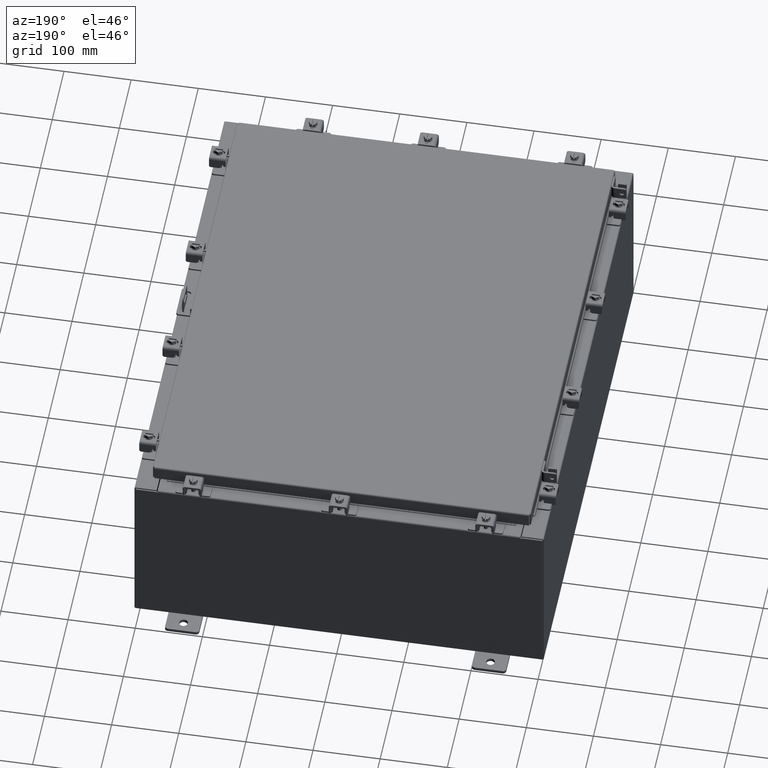
[diagram: clean part render]
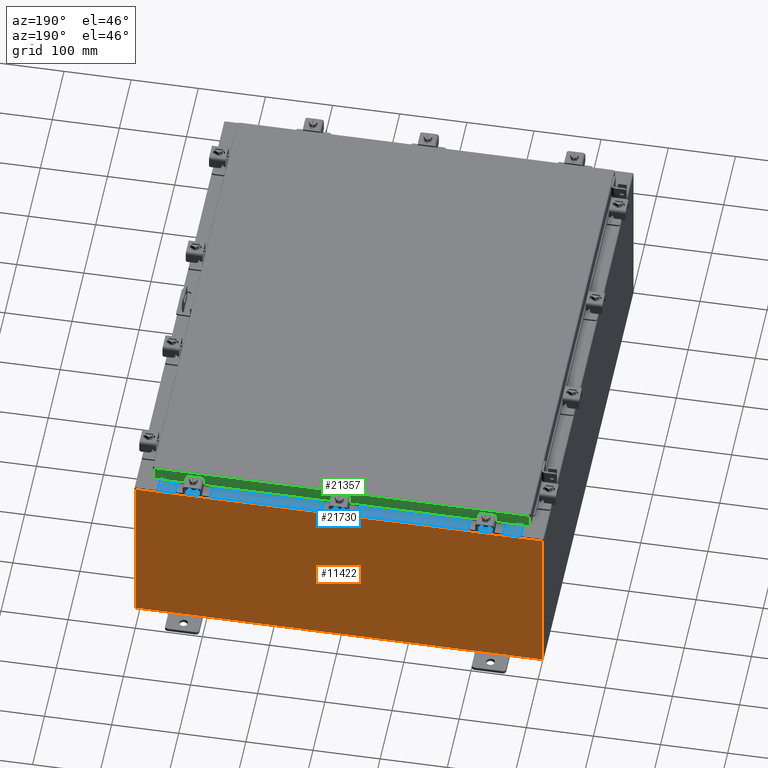
[diagram: same view with three faces highlighted in distinct colors, each labeled with its STEP entity id]
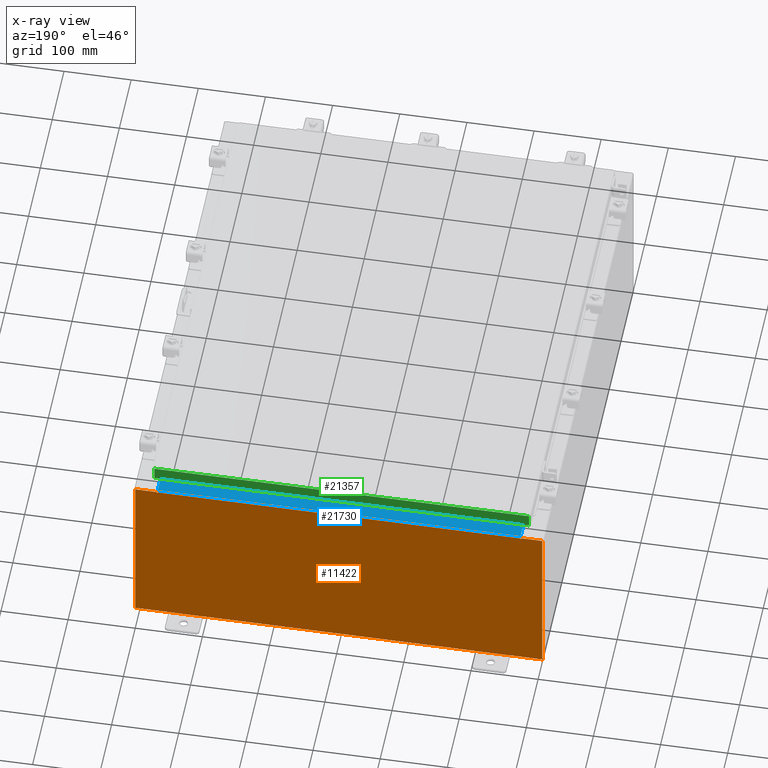
[diagram: x-ray of the same camera — body ghosted, the three highlighted faces saturated]
A machine part, auxiliary view with three faces highlighted in distinct colors.
The next image is the same camera in x-ray (body ghosted, the three faces saturated) — at least one of them is partly hidden behind the body in this view.
Their STEP definitions:

[orange] entity #11422 — the highlighted planar face has unit normal (0, -1, 0).
#81 = CARTESIAN_POINT ( 'NONE',  ( -10.63720000000000400, -7.171100983368691200E-016, 4.912300000000000100 ) ) ;
#388 = VERTEX_POINT ( 'NONE', #21319 ) ;
#489 = ORIENTED_EDGE ( 'NONE', *, *, #22843, .T. ) ;
#549 = ORIENTED_EDGE ( 'NONE', *, *, #1591, .T. ) ;
#699 = CARTESIAN_POINT ( 'NONE',  ( -10.67455000000000200, 0.0000000000000000000, 4.874950000000000100 ) ) ;
#844 = VECTOR ( 'NONE', #14870, 39.37007874015748100 ) ;
#1191 = CARTESIAN_POINT ( 'NONE',  ( 11.92530000000000000, 0.0000000000000000000, -4.925300000000000000 ) ) ;
#1390 = EDGE_CURVE ( 'NONE', #12789, #22672, #20598, .T. ) ;
#1398 = EDGE_CURVE ( 'NONE', #1872, #22672, #11057, .T. ) ;
#1481 = DIRECTION ( 'NONE',  ( 0.0000000000000000000, 0.0000000000000000000, 1.000000000000000000 ) ) ;
#1591 = EDGE_CURVE ( 'NONE', #10877, #388, #21973, .T. ) ;
#1763 = LINE ( 'NONE', #15866, #15434 ) ;
#1872 = VERTEX_POINT ( 'NONE', #699 ) ;
#2328 = ORIENTED_EDGE ( 'NONE', *, *, #6198, .F. ) ;
#2352 = DIRECTION ( 'NONE',  ( 1.000000000000000000, 0.0000000000000000000, 0.0000000000000000000 ) ) ;
#2625 = CARTESIAN_POINT ( 'NONE',  ( -10.67455000000000200, 0.0000000000000000000, 4.925300000000000000 ) ) ;
#2829 = DIRECTION ( 'NONE',  ( 0.0000000000000000000, -0.0000000000000000000, -1.000000000000000000 ) ) ;
#2874 = DIRECTION ( 'NONE',  ( -0.0000000000000000000, 1.000000000000000000, -0.0000000000000000000 ) ) ;
#2935 = VECTOR ( 'NONE', #17983, 39.37007874015748100 ) ;
#3268 = CARTESIAN_POINT ( 'NONE',  ( 10.63720000000000400, 0.0000000000000000000, 0.0000000000000000000 ) ) ;
#3448 = VERTEX_POINT ( 'NONE', #8873 ) ;
#3937 = VERTEX_POINT ( 'NONE', #15804 ) ;
#4365 = CARTESIAN_POINT ( 'NONE',  ( -10.65587500000000200, 0.0000000000000000000, 4.874950000000000100 ) ) ;
#4466 = VECTOR ( 'NONE', #6285, 39.37007874015748100 ) ;
#4902 = CARTESIAN_POINT ( 'NONE',  ( -10.63720000000000400, -7.171100983368691200E-016, 4.912300000000000100 ) ) ;
#5177 = EDGE_CURVE ( 'NONE', #3448, #12789, #1763, .T. ) ;
#5584 = ORIENTED_EDGE ( 'NONE', *, *, #9657, .T. ) ;
#5592 = DIRECTION ( 'NONE',  ( 0.0000000000000000000, 0.0000000000000000000, 1.000000000000000000 ) ) ;
#5613 = EDGE_CURVE ( 'NONE', #5776, #18730, #12906, .T. ) ;
#5776 = VERTEX_POINT ( 'NONE', #15765 ) ;
#6145 = DIRECTION ( 'NONE',  ( 0.0000000000000000000, 0.0000000000000000000, -1.000000000000000000 ) ) ;
#6198 = EDGE_CURVE ( 'NONE', #12036, #1872, #22401, .T. ) ;
#6213 = FACE_OUTER_BOUND ( 'NONE', #13781, .T. ) ;
#6228 = AXIS2_PLACEMENT_3D ( 'NONE', #22462, #13540, #2829 ) ;
#6285 = DIRECTION ( 'NONE',  ( -4.340572780400004900E-014, 0.0000000000000000000, -1.000000000000000000 ) ) ;
#6352 = PLANE ( 'NONE',  #6228 ) ;
#6433 = CARTESIAN_POINT ( 'NONE',  ( -11.92530000000000000, 0.0000000000000000000, -4.925300000000000000 ) ) ;
#7877 = VERTEX_POINT ( 'NONE', #1191 ) ;
#7958 = ORIENTED_EDGE ( 'NONE', *, *, #18064, .F. ) ;
#8047 = ORIENTED_EDGE ( 'NONE', *, *, #10407, .F. ) ;
#8280 = CARTESIAN_POINT ( 'NONE',  ( 11.92530000000000000, 0.0000000000000000000, 4.925300000000000000 ) ) ;
#8347 = CARTESIAN_POINT ( 'NONE',  ( -11.92530000000000000, 0.0000000000000000000, 4.925300000000000000 ) ) ;
#8502 = DIRECTION ( 'NONE',  ( 1.000000000000000000, 0.0000000000000000000, 0.0000000000000000000 ) ) ;
#8565 = CARTESIAN_POINT ( 'NONE',  ( -11.92530000000000000, 0.0000000000000000000, 4.925300000000000000 ) ) ;
#8873 = CARTESIAN_POINT ( 'NONE',  ( -11.92530000000000000, 0.0000000000000000000, -4.925300000000000000 ) ) ;
#9050 = VECTOR ( 'NONE', #2352, 39.37007874015748100 ) ;
#9245 = ORIENTED_EDGE ( 'NONE', *, *, #13829, .F. ) ;
#9331 = LINE ( 'NONE', #3268, #23039 ) ;
#9657 = EDGE_CURVE ( 'NONE', #22860, #7877, #9844, .T. ) ;
#9844 = LINE ( 'NONE', #8280, #19383 ) ;
#10067 = ORIENTED_EDGE ( 'NONE', *, *, #1390, .T. ) ;
#10167 = EDGE_CURVE ( 'NONE', #3937, #22860, #14375, .T. ) ;
#10407 = EDGE_CURVE ( 'NONE', #18730, #388, #9331, .T. ) ;
#10877 = VERTEX_POINT ( 'NONE', #4902 ) ;
#11057 = LINE ( 'NONE', #12782, #16365 ) ;
#11226 = ORIENTED_EDGE ( 'NONE', *, *, #10167, .T. ) ;
#11422 = ADVANCED_FACE ( 'NONE', ( #6213 ), #6352, .F. ) ;
#11703 = VECTOR ( 'NONE', #22550, 39.37007874015748100 ) ;
#12036 = VERTEX_POINT ( 'NONE', #15366 ) ;
#12704 = ORIENTED_EDGE ( 'NONE', *, *, #5613, .F. ) ;
#12782 = CARTESIAN_POINT ( 'NONE',  ( -10.67455000000000200, -0.0000000000000000000, 0.0000000000000000000 ) ) ;
#12789 = VERTEX_POINT ( 'NONE', #8347 ) ;
#12906 = CIRCLE ( 'NONE', #13171, 0.01867499999999949400 ) ;
#13042 = CARTESIAN_POINT ( 'NONE',  ( -11.92530000000000000, 0.0000000000000000000, 4.925300000000000000 ) ) ;
#13171 = AXIS2_PLACEMENT_3D ( 'NONE', #13583, #2874, #15360 ) ;
#13393 = LINE ( 'NONE', #16964, #4466 ) ;
#13540 = DIRECTION ( 'NONE',  ( 0.0000000000000000000, -1.000000000000000000, 0.0000000000000000000 ) ) ;
#13583 = CARTESIAN_POINT ( 'NONE',  ( 10.65587500000000200, 0.0000000000000000000, 4.874950000000000100 ) ) ;
#13781 = EDGE_LOOP ( 'NONE', ( #13969, #2328, #9245, #549, #8047, #12704, #7958, #11226, #5584, #489, #15733, #10067 ) ) ;
#13829 = EDGE_CURVE ( 'NONE', #10877, #12036, #21785, .T. ) ;
#13969 = ORIENTED_EDGE ( 'NONE', *, *, #1398, .F. ) ;
#14375 = LINE ( 'NONE', #13042, #9050 ) ;
#14870 = DIRECTION ( 'NONE',  ( 0.0000000000000000000, 0.0000000000000000000, -1.000000000000000000 ) ) ;
#15360 = DIRECTION ( 'NONE',  ( 0.0000000000000000000, 0.0000000000000000000, -1.000000000000000000 ) ) ;
#15366 = CARTESIAN_POINT ( 'NONE',  ( -10.63720000000000400, -0.0000000000000000000, 4.874950000000000100 ) ) ;
#15434 = VECTOR ( 'NONE', #23072, 39.37007874015748100 ) ;
#15733 = ORIENTED_EDGE ( 'NONE', *, *, #5177, .T. ) ;
#15765 = CARTESIAN_POINT ( 'NONE',  ( 10.67455000000000200, 0.0000000000000000000, 4.874950000000000100 ) ) ;
#15804 = CARTESIAN_POINT ( 'NONE',  ( 10.67455000000000200, 0.0000000000000000000, 4.925300000000000000 ) ) ;
#15810 = VECTOR ( 'NONE', #8502, 39.37007874015748100 ) ;
#15866 = CARTESIAN_POINT ( 'NONE',  ( -11.92530000000000000, 0.0000000000000000000, 4.925300000000000000 ) ) ;
#16365 = VECTOR ( 'NONE', #5592, 39.37007874015748100 ) ;
#16431 = LINE ( 'NONE', #6433, #11703 ) ;
#16838 = DIRECTION ( 'NONE',  ( -0.0000000000000000000, 1.000000000000000000, -0.0000000000000000000 ) ) ;
#16964 = CARTESIAN_POINT ( 'NONE',  ( 10.67454999999979000, -0.0000000000000000000, -4.633366117301795800E-013 ) ) ;
#17054 = AXIS2_PLACEMENT_3D ( 'NONE', #4365, #16838, #6145 ) ;
#17983 = DIRECTION ( 'NONE',  ( 1.000000000000000000, 0.0000000000000000000, 0.0000000000000000000 ) ) ;
#18064 = EDGE_CURVE ( 'NONE', #3937, #5776, #13393, .T. ) ;
#18730 = VERTEX_POINT ( 'NONE', #20807 ) ;
#19122 = CARTESIAN_POINT ( 'NONE',  ( 11.92530000000000000, 0.0000000000000000000, 4.925300000000000000 ) ) ;
#19383 = VECTOR ( 'NONE', #20823, 39.37007874015748100 ) ;
#20598 = LINE ( 'NONE', #8565, #15810 ) ;
#20807 = CARTESIAN_POINT ( 'NONE',  ( 10.63720000000000400, 0.0000000000000000000, 4.874950000000000100 ) ) ;
#20823 = DIRECTION ( 'NONE',  ( 0.0000000000000000000, 0.0000000000000000000, -1.000000000000000000 ) ) ;
#21319 = CARTESIAN_POINT ( 'NONE',  ( 10.63720000000000400, 0.0000000000000000000, 4.912300000000000100 ) ) ;
#21785 = LINE ( 'NONE', #22002, #844 ) ;
#21973 = LINE ( 'NONE', #81, #2935 ) ;
#22002 = CARTESIAN_POINT ( 'NONE',  ( -10.63720000000000400, -0.0000000000000000000, 0.0000000000000000000 ) ) ;
#22401 = CIRCLE ( 'NONE', #17054, 0.01867499999999949400 ) ;
#22462 = CARTESIAN_POINT ( 'NONE',  ( 0.0000000000000000000, 0.0000000000000000000, 0.0000000000000000000 ) ) ;
#22550 = DIRECTION ( 'NONE',  ( -1.000000000000000000, -0.0000000000000000000, -0.0000000000000000000 ) ) ;
#22672 = VERTEX_POINT ( 'NONE', #2625 ) ;
#22843 = EDGE_CURVE ( 'NONE', #7877, #3448, #16431, .T. ) ;
#22860 = VERTEX_POINT ( 'NONE', #19122 ) ;
#23039 = VECTOR ( 'NONE', #1481, 39.37007874015748100 ) ;
#23072 = DIRECTION ( 'NONE',  ( -0.0000000000000000000, -0.0000000000000000000, 1.000000000000000000 ) ) ;

[blue] entity #21730 — the highlighted planar face has unit normal (0, 0, 1).
#502 = ORIENTED_EDGE ( 'NONE', *, *, #3005, .F. ) ;
#2322 = LINE ( 'NONE', #10391, #20787 ) ;
#2601 = CARTESIAN_POINT ( 'NONE',  ( -10.63720000000000200, -0.08770000000000081900, 5.000000000000000000 ) ) ;
#2613 = CARTESIAN_POINT ( 'NONE',  ( 0.0000000000000000000, 1.782631094477737600E-014, 5.000000000000000000 ) ) ;
#3005 = EDGE_CURVE ( 'NONE', #22979, #18825, #20876, .T. ) ;
#3113 = VECTOR ( 'NONE', #9122, 39.37007874015748100 ) ;
#3401 = VERTEX_POINT ( 'NONE', #8815 ) ;
#3723 = ORIENTED_EDGE ( 'NONE', *, *, #21160, .T. ) ;
#5095 = DIRECTION ( 'NONE',  ( -0.0000000000000000000, 1.000000000000000000, -3.566381192773190000E-015 ) ) ;
#5127 = EDGE_CURVE ( 'NONE', #18825, #12606, #2322, .T. ) ;
#6029 = CARTESIAN_POINT ( 'NONE',  ( 10.63720000000000400, -1.287299999999999900, 5.000000000000003600 ) ) ;
#7267 = ORIENTED_EDGE ( 'NONE', *, *, #10003, .F. ) ;
#7344 = CARTESIAN_POINT ( 'NONE',  ( 10.63720000000000200, -1.300299999999999800, 5.000000000000004400 ) ) ;
#7848 = EDGE_LOOP ( 'NONE', ( #22129, #502, #7267, #3723 ) ) ;
#7988 = DIRECTION ( 'NONE',  ( 0.0000000000000000000, -1.000000000000000000, 3.566381192773190000E-015 ) ) ;
#8063 = CARTESIAN_POINT ( 'NONE',  ( 4.504626575497439200E-018, -0.08770000000000081900, 5.000000000000000000 ) ) ;
#8815 = CARTESIAN_POINT ( 'NONE',  ( 10.63720000000000400, -0.08770000000000047200, 5.000000000000000000 ) ) ;
#9122 = DIRECTION ( 'NONE',  ( -0.0000000000000000000, -1.000000000000000000, 3.566381192773190000E-015 ) ) ;
#10003 = EDGE_CURVE ( 'NONE', #3401, #22979, #17381, .T. ) ;
#10391 = CARTESIAN_POINT ( 'NONE',  ( -10.63720000000000200, -0.07469999999999973900, 5.000000000000000000 ) ) ;
#12119 = CARTESIAN_POINT ( 'NONE',  ( -10.63720000000000200, -1.287299999999999200, 5.000000000000004400 ) ) ;
#12606 = VERTEX_POINT ( 'NONE', #2601 ) ;
#14087 = CARTESIAN_POINT ( 'NONE',  ( 10.63720000000000200, -1.287299999999999900, 5.000000000000004400 ) ) ;
#15097 = PLANE ( 'NONE',  #22637 ) ;
#16089 = VECTOR ( 'NONE', #16704, 39.37007874015748100 ) ;
#16475 = FACE_OUTER_BOUND ( 'NONE', #7848, .T. ) ;
#16704 = DIRECTION ( 'NONE',  ( -1.000000000000000000, 0.0000000000000000000, 0.0000000000000000000 ) ) ;
#17381 = LINE ( 'NONE', #7344, #3113 ) ;
#18098 = VECTOR ( 'NONE', #20626, 39.37007874015748100 ) ;
#18712 = DIRECTION ( 'NONE',  ( 0.0000000000000000000, 3.566381192773190000E-015, 1.000000000000000000 ) ) ;
#18825 = VERTEX_POINT ( 'NONE', #12119 ) ;
#20626 = DIRECTION ( 'NONE',  ( -1.000000000000000000, -5.136404305013091600E-017, 1.831837571187793700E-031 ) ) ;
#20787 = VECTOR ( 'NONE', #5095, 39.37007874015748100 ) ;
#20876 = LINE ( 'NONE', #6029, #16089 ) ;
#21160 = EDGE_CURVE ( 'NONE', #3401, #12606, #22288, .T. ) ;
#21730 = ADVANCED_FACE ( 'NONE', ( #16475 ), #15097, .T. ) ;
#22129 = ORIENTED_EDGE ( 'NONE', *, *, #5127, .F. ) ;
#22288 = LINE ( 'NONE', #8063, #18098 ) ;
#22637 = AXIS2_PLACEMENT_3D ( 'NONE', #2613, #18712, #7988 ) ;
#22979 = VERTEX_POINT ( 'NONE', #14087 ) ;

[green] entity #21357 — the highlighted planar face has unit normal (0, -1, -0).
#249 = EDGE_CURVE ( 'NONE', #6149, #9801, #2710, .T. ) ;
#587 = ORIENTED_EDGE ( 'NONE', *, *, #1657, .F. ) ;
#1406 = CARTESIAN_POINT ( 'NONE',  ( 10.98915786437626700, 14.09400000000000100, -0.8499999999999996400 ) ) ;
#1497 = CARTESIAN_POINT ( 'NONE',  ( -11.07799999999999900, 14.09400000000000100, -0.8500000000000024200 ) ) ;
#1657 = EDGE_CURVE ( 'NONE', #9536, #12588, #20308, .T. ) ;
#2082 = ORIENTED_EDGE ( 'NONE', *, *, #9817, .F. ) ;
#2519 = CARTESIAN_POINT ( 'NONE',  ( -10.98915786437626900, 14.09400000000000100, -0.8500000000000024200 ) ) ;
#2710 = LINE ( 'NONE', #16222, #7463 ) ;
#5045 = CARTESIAN_POINT ( 'NONE',  ( 10.23915786437626700, 14.09399999999999900, -0.8500000000000033100 ) ) ;
#6009 = VECTOR ( 'NONE', #7423, 39.37007874015748100 ) ;
#6149 = VERTEX_POINT ( 'NONE', #22102 ) ;
#6216 = DIRECTION ( 'NONE',  ( -1.000000000000000000, -3.475696988576942200E-031, -9.473942235605600700E-046 ) ) ;
#7333 = VECTOR ( 'NONE', #6216, 39.37007874015748100 ) ;
#7423 = DIRECTION ( 'NONE',  ( 1.000000000000000000, -4.379057701015054300E-047, 1.233005954894504400E-016 ) ) ;
#7463 = VECTOR ( 'NONE', #17029, 39.37007874015748100 ) ;
#7606 = VECTOR ( 'NONE', #17509, 39.37007874015748100 ) ;
#8348 = LINE ( 'NONE', #8443, #12561 ) ;
#8443 = CARTESIAN_POINT ( 'NONE',  ( -10.98915786437626900, 14.09399999999999900, -0.07469999999999978000 ) ) ;
#8542 = PLANE ( 'NONE',  #20699 ) ;
#8601 = DIRECTION ( 'NONE',  ( 3.475696988576941300E-031, -1.000000000000000000, -2.818880942772350300E-015 ) ) ;
#8720 = EDGE_CURVE ( 'NONE', #12588, #17580, #11871, .T. ) ;
#8971 = ORIENTED_EDGE ( 'NONE', *, *, #8720, .F. ) ;
#9401 = FACE_OUTER_BOUND ( 'NONE', #21233, .T. ) ;
#9536 = VERTEX_POINT ( 'NONE', #2519 ) ;
#9801 = VERTEX_POINT ( 'NONE', #1406 ) ;
#9817 = EDGE_CURVE ( 'NONE', #17580, #9801, #21336, .T. ) ;
#11586 = ORIENTED_EDGE ( 'NONE', *, *, #249, .T. ) ;
#11871 = LINE ( 'NONE', #21106, #20821 ) ;
#12561 = VECTOR ( 'NONE', #21061, 39.37007874015748100 ) ;
#12588 = VERTEX_POINT ( 'NONE', #15015 ) ;
#12653 = CARTESIAN_POINT ( 'NONE',  ( -11.07799999999999900, 14.09400000000000100, -0.8500000000000024200 ) ) ;
#13587 = ORIENTED_EDGE ( 'NONE', *, *, #21937, .F. ) ;
#15015 = CARTESIAN_POINT ( 'NONE',  ( -10.23915786437626700, 14.09399999999999900, -0.8500000000000033100 ) ) ;
#15870 = ORIENTED_EDGE ( 'NONE', *, *, #16212, .F. ) ;
#16212 = EDGE_CURVE ( 'NONE', #6149, #18089, #16824, .T. ) ;
#16222 = CARTESIAN_POINT ( 'NONE',  ( 10.98915786437626900, 14.09399999999999900, 3.999012166344507700E-014 ) ) ;
#16824 = LINE ( 'NONE', #18729, #7333 ) ;
#17029 = DIRECTION ( 'NONE',  ( 0.0000000000000000000, 2.818880942772350300E-015, -1.000000000000000000 ) ) ;
#17509 = DIRECTION ( 'NONE',  ( 1.000000000000000000, -4.379057701015054300E-047, 1.233005954894504400E-016 ) ) ;
#17580 = VERTEX_POINT ( 'NONE', #5045 ) ;
#18089 = VERTEX_POINT ( 'NONE', #18803 ) ;
#18729 = CARTESIAN_POINT ( 'NONE',  ( -11.07799999999999900, 14.09399999999999900, -0.08770000000000007000 ) ) ;
#18803 = CARTESIAN_POINT ( 'NONE',  ( -10.98915786437626700, 14.09399999999999900, -0.08770000000000007000 ) ) ;
#19348 = CARTESIAN_POINT ( 'NONE',  ( -4.898647335700341400E-030, 14.09399999999999900, 3.999012166344507700E-014 ) ) ;
#20308 = LINE ( 'NONE', #12653, #6009 ) ;
#20699 = AXIS2_PLACEMENT_3D ( 'NONE', #19348, #8601, #21152 ) ;
#20821 = VECTOR ( 'NONE', #22876, 39.37007874015748100 ) ;
#21061 = DIRECTION ( 'NONE',  ( -0.0000000000000000000, 2.818880942772350300E-015, -1.000000000000000000 ) ) ;
#21106 = CARTESIAN_POINT ( 'NONE',  ( -10.23915786437626700, 14.09399999999999900, -0.8500000000000033100 ) ) ;
#21152 = DIRECTION ( 'NONE',  ( 0.0000000000000000000, 2.818880942772350300E-015, -1.000000000000000000 ) ) ;
#21233 = EDGE_LOOP ( 'NONE', ( #15870, #11586, #2082, #8971, #587, #13587 ) ) ;
#21336 = LINE ( 'NONE', #1497, #7606 ) ;
#21357 = ADVANCED_FACE ( 'NONE', ( #9401 ), #8542, .F. ) ;
#21937 = EDGE_CURVE ( 'NONE', #18089, #9536, #8348, .T. ) ;
#22102 = CARTESIAN_POINT ( 'NONE',  ( 10.98915786437626700, 14.09399999999999900, -0.08770000000000007000 ) ) ;
#22876 = DIRECTION ( 'NONE',  ( 1.000000000000000000, -0.0000000000000000000, -0.0000000000000000000 ) ) ;